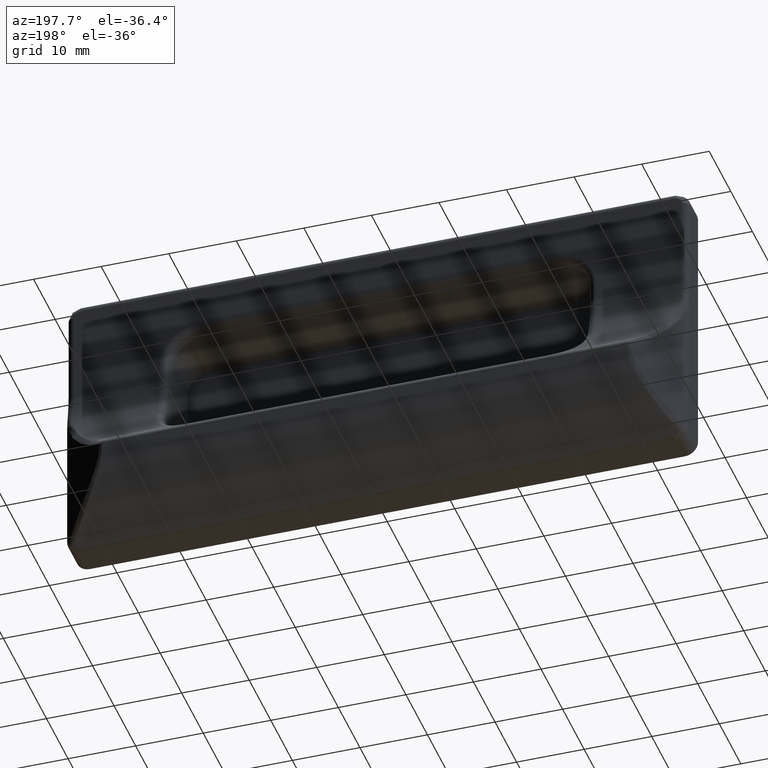
[diagram: clean part render]
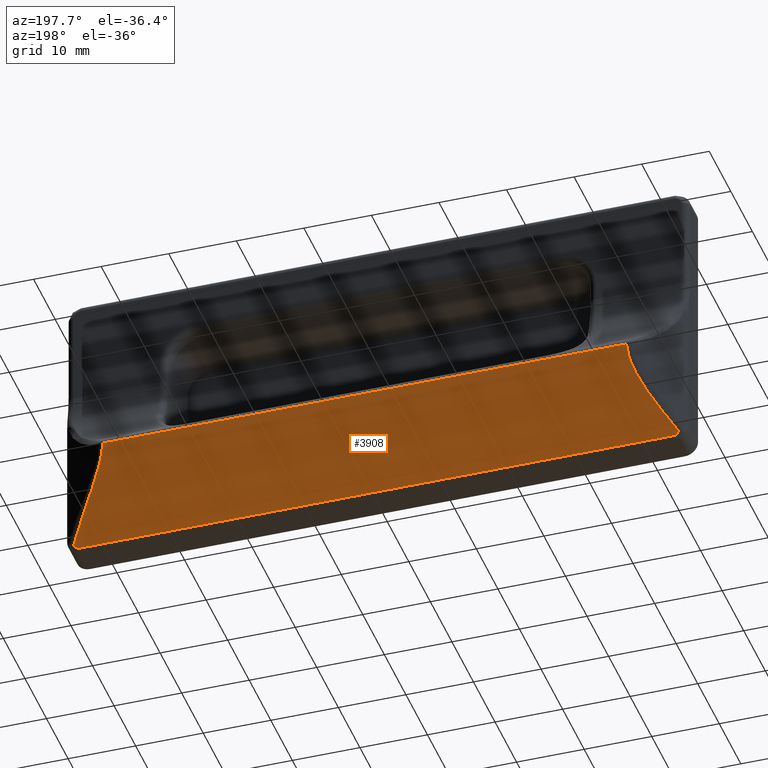
[diagram: same view with one face highlighted and labeled with its STEP entity id]
A machine part, auxiliary view. The second image highlights one B-rep face of the part: STEP entity #3908.
In plain terms, the highlighted cylindrical surface (partial cylindrical patch) has radius 19.3333 mm, axis along (-1, 0, 0).
Its self-contained STEP definition (entity closure, byte-faithful):
#108=LINE('',#7168,#389);
#150=LINE('',#7848,#431);
#389=VECTOR('',#4686,77.5107505112214);
#431=VECTOR('',#4910,88.);
#754=CYLINDRICAL_SURFACE('',#4231,19.3333333333333);
#926=FACE_OUTER_BOUND('',#1174,.T.);
#1174=EDGE_LOOP('',(#3129,#3130,#3131,#3132,#3133,#3134));
#1554=B_SPLINE_CURVE_WITH_KNOTS('',3,(#7799,#7800,#7801,#7802,#7803,#7804),
 .UNSPECIFIED.,.F.,.F.,(4,1,1,4),(1.76502801824954,2.19110351925561,2.40414126975864,
3.25629227177076),.UNSPECIFIED.);
#1556=B_SPLINE_CURVE_WITH_KNOTS('',3,(#7838,#7839,#7840,#7841,#7842),
 .UNSPECIFIED.,.F.,.F.,(4,1,4),(0.637737760514328,0.679134528570994,0.734330219313217),
 .UNSPECIFIED.);
#1558=B_SPLINE_CURVE_WITH_KNOTS('',3,(#7879,#7880,#7881,#7882,#7883),
 .UNSPECIFIED.,.F.,.F.,(4,1,4),(0.734330219313217,0.789525910055439,0.830922678112106),
 .UNSPECIFIED.);
#1561=B_SPLINE_CURVE_WITH_KNOTS('',3,(#7979,#7980,#7981,#7982,#7983,#7984),
 .UNSPECIFIED.,.F.,.F.,(4,1,1,4),(0.253173867143363,0.892287118652458,1.31836261965852,
1.74443812066458),.UNSPECIFIED.);
#1725=VERTEX_POINT('',#7166);
#1726=VERTEX_POINT('',#7167);
#1765=VERTEX_POINT('',#7561);
#1771=VERTEX_POINT('',#7699);
#1776=VERTEX_POINT('',#7830);
#1778=VERTEX_POINT('',#7844);
#2139=EDGE_CURVE('',#1725,#1726,#108,.T.);
#2238=EDGE_CURVE('',#1726,#1771,#1554,.T.);
#2241=EDGE_CURVE('',#1771,#1776,#1556,.T.);
#2244=EDGE_CURVE('',#1776,#1778,#150,.T.);
#2246=EDGE_CURVE('',#1778,#1765,#1558,.T.);
#2258=EDGE_CURVE('',#1765,#1725,#1561,.T.);
#3129=ORIENTED_EDGE('',*,*,#2139,.F.);
#3130=ORIENTED_EDGE('',*,*,#2258,.F.);
#3131=ORIENTED_EDGE('',*,*,#2246,.F.);
#3132=ORIENTED_EDGE('',*,*,#2244,.F.);
#3133=ORIENTED_EDGE('',*,*,#2241,.F.);
#3134=ORIENTED_EDGE('',*,*,#2238,.F.);
#3908=ADVANCED_FACE('',(#926),#754,.T.);
#4231=AXIS2_PLACEMENT_3D('',#8035,#4961,#4962);
#4686=DIRECTION('',(-1.,0.,0.));
#4910=DIRECTION('',(1.,0.,0.));
#4961=DIRECTION('center_axis',(-1.,0.,0.));
#4962=DIRECTION('ref_axis',(0.,0.689655172413792,-0.724137931034484));
#7166=CARTESIAN_POINT('',(38.7553752556106,10.4942090273914,-7.97316389567391));
#7167=CARTESIAN_POINT('',(-38.7553752556107,10.4942090273915,-7.9731638956715));
#7168=CARTESIAN_POINT('',(0.,10.4942090273914,-7.97316389567391));
#7561=CARTESIAN_POINT('',(44.7710282232797,5.17357004575482,-20.826081025818));
#7699=CARTESIAN_POINT('',(-44.7710282232797,5.17357004575482,-20.826081025818));
#7799=CARTESIAN_POINT('Ctrl Pts',(-38.7553752556107,10.4942090273915,-7.9731638956715));
#7800=CARTESIAN_POINT('Ctrl Pts',(-38.8181738510674,10.4575805844362,-9.46934268129122));
#7801=CARTESIAN_POINT('Ctrl Pts',(-39.3748442998673,10.1386403931439,-11.6574119526077));
#7802=CARTESIAN_POINT('Ctrl Pts',(-41.4677148517088,8.70054637956074,-16.197865348426));
#7803=CARTESIAN_POINT('Ctrl Pts',(-43.3876713633257,6.97681255070481,-18.9307118256034));
#7804=CARTESIAN_POINT('Ctrl Pts',(-44.7710282232797,5.17357004575482,-20.826081025818));
#7830=CARTESIAN_POINT('',(-44.,4.79893002327986,-21.2090909090909));
#7838=CARTESIAN_POINT('Ctrl Pts',(-44.7710282232797,5.17357004575482,-20.826081025818));
#7839=CARTESIAN_POINT('Ctrl Pts',(-44.7001764930674,5.08750186198943,-20.9165463870656));
#7840=CARTESIAN_POINT('Ctrl Pts',(-44.4961490192732,4.89994782857312,-21.109250207602));
#7841=CARTESIAN_POINT('Ctrl Pts',(-44.1839856358074,4.79893002327986,-21.2090909090909));
#7842=CARTESIAN_POINT('Ctrl Pts',(-44.,4.79893002327986,-21.2090909090909));
#7844=CARTESIAN_POINT('',(44.,4.79893002327986,-21.2090909090909));
#7848=CARTESIAN_POINT('',(0.,4.79893002327986,-21.2090909090909));
#7879=CARTESIAN_POINT('Ctrl Pts',(44.,4.79893002327986,-21.2090909090909));
#7880=CARTESIAN_POINT('Ctrl Pts',(44.1839856358074,4.79893002327986,-21.2090909090909));
#7881=CARTESIAN_POINT('Ctrl Pts',(44.4961490192733,4.89994782857315,-21.1092502076019));
#7882=CARTESIAN_POINT('Ctrl Pts',(44.7001764930675,5.08750186198943,-20.9165463870656));
#7883=CARTESIAN_POINT('Ctrl Pts',(44.7710282232797,5.17357004575482,-20.826081025818));
#7979=CARTESIAN_POINT('Ctrl Pts',(44.7710282232797,5.17357004575482,-20.826081025818));
#7980=CARTESIAN_POINT('Ctrl Pts',(43.7335105783142,6.52600192446733,-19.4045541256571));
#7981=CARTESIAN_POINT('Ctrl Pts',(41.8850889225315,8.37392037485868,-16.7535100291346));
#7982=CARTESIAN_POINT('Ctrl Pts',(39.5735622388589,10.0279630060547,-12.3812076107879));
#7983=CARTESIAN_POINT('Ctrl Pts',(38.8181738510675,10.4575805844362,-9.46934268129121));
#7984=CARTESIAN_POINT('Ctrl Pts',(38.7553752556107,10.4942090273915,-7.9731638956715));
#8035=CARTESIAN_POINT('Origin',(0.,-8.83333333333329,-7.50000000000001));